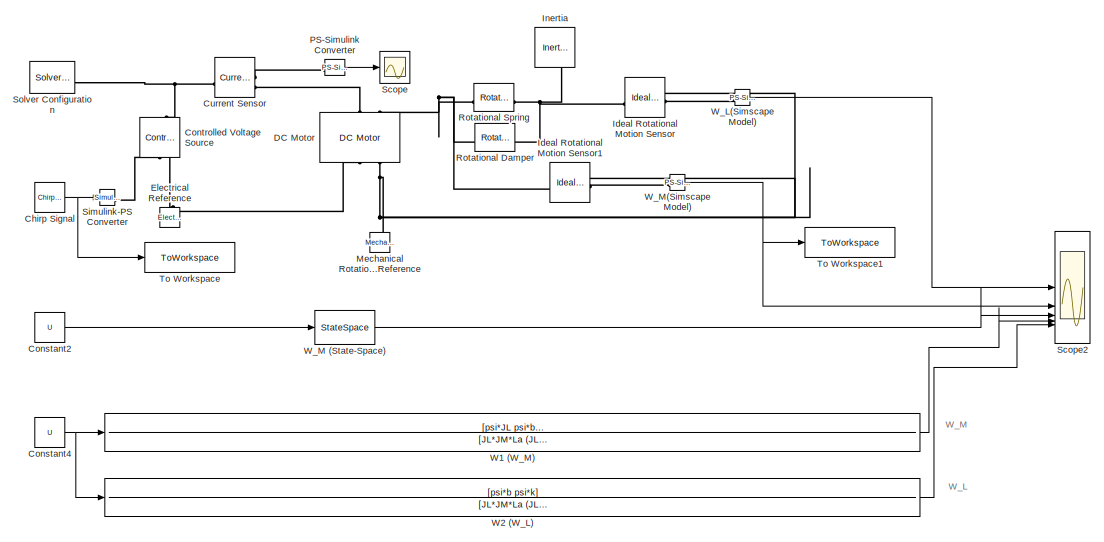
[diagram: root canvas - part 1/2, center side, full height]
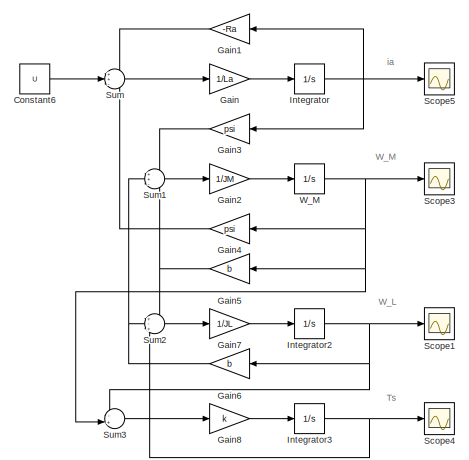
[diagram: root canvas - part 2/2, right side, full height]
MODEL slx_5d9f4610cdbe
KIND model
CONFIG AbsTol = auto
CONFIG EnableMultiTasking = off
CONFIG FixedStep = auto
CONFIG MaxStep = auto
CONFIG MinStep = auto
CONFIG RelTol = 1e-3
CONFIG SampleTimeConstraint = Unconstrained
CONFIG SolverName = VariableStepAuto
CONFIG StartTime = 0.0
CONFIG StopTime = 250
BLOCK [Reference] Chirp Signal  REF=simulink/Sources/Chirp Signal
  SourceBlock = simulink/Sources/Chirp Signal
  SourceType = chirp
BLOCK [Constant] Constant2
  Commented = on
  Value = U
BLOCK [Constant] Constant4
  Commented = on
  Value = U
BLOCK [Constant] Constant6
  Commented = on
  Value = U
BLOCK [Reference] Controlled Voltage Source  REF=fl_lib/Electrical/Electrical Sources/Controlled Voltage
Source
  NameLocation = right
  SourceBlock = fl_lib/Electrical/Electrical Sources/Controlled Voltage\nSource
  SourceType = Controlled Voltage\nSource
BLOCK [Reference] Current Sensor  REF=fl_lib/Electrical/Electrical Sensors/Current Sensor
  SourceBlock = fl_lib/Electrical/Electrical Sensors/Current Sensor
  SourceType = Current Sensor
BLOCK [Reference] DC Motor  REF=ee_lib/Electromechanical/Brushed Motors/DC Motor
  NameLocation = right
  SourceBlock = ee_lib/Electromechanical/Brushed Motors/DC Motor
  SourceType = DC Motor
BLOCK [Reference] Electrical Reference  REF=fl_lib/Electrical/Electrical Elements/Electrical Reference
  NameLocation = right
  SourceBlock = fl_lib/Electrical/Electrical Elements/Electrical Reference
  SourceType = Electrical Reference
BLOCK [Gain] Gain
  Commented = on
  Gain = 1/La
BLOCK [Gain] Gain1
  Commented = on
  Gain = -Ra
  NameLocation = top
BLOCK [Gain] Gain2
  Commented = on
  Gain = 1/JM
BLOCK [Gain] Gain3
  Commented = on
  Gain = psi
  NameLocation = top
BLOCK [Gain] Gain4
  Commented = on
  Gain = psi
  NameLocation = top
BLOCK [Gain] Gain5
  Commented = on
  Gain = b
  NameLocation = top
BLOCK [Gain] Gain6
  Commented = on
  Gain = b
  NameLocation = top
BLOCK [Gain] Gain7
  Commented = on
  Gain = 1/JL
BLOCK [Gain] Gain8
  Commented = on
  Gain = k
BLOCK [Reference] Ideal Rotational Motion Sensor  REF=fl_lib/Mechanical/Mechanical Sensors/Ideal Rotational
Motion Sensor
  SourceBlock = fl_lib/Mechanical/Mechanical Sensors/Ideal Rotational\nMotion Sensor
  SourceType = Ideal Rotational\nMotion Sensor
BLOCK [Reference] Ideal Rotational Motion Sensor1  REF=fl_lib/Mechanical/Mechanical Sensors/Ideal Rotational
Motion Sensor
  SourceBlock = fl_lib/Mechanical/Mechanical Sensors/Ideal Rotational\nMotion Sensor
  SourceType = Ideal Rotational\nMotion Sensor
BLOCK [Reference] Inertia  REF=fl_lib/Mechanical/Rotational Elements/Inertia
  NameLocation = left
  SourceBlock = fl_lib/Mechanical/Rotational Elements/Inertia
  SourceType = Inertia
BLOCK [Integrator] Integrator
  Commented = on
BLOCK [Integrator] Integrator2
  Commented = on
BLOCK [Integrator] Integrator3
  Commented = on
BLOCK [Reference] Mechanical Rotational Reference  REF=fl_lib/Mechanical/Rotational Elements/Mechanical
Rotational Reference
  NameLocation = right
  SourceBlock = fl_lib/Mechanical/Rotational Elements/Mechanical\nRotational Reference
  SourceType = Mechanical\nRotational Reference
BLOCK [Reference] PS-Simulink Converter  REF=nesl_utility/PS-Simulink
Converter
  SourceBlock = nesl_utility/PS-Simulink\nConverter
  SourceType = PS-Simulink\nConverter
BLOCK [Reference] Rotational Damper  REF=fl_lib/Mechanical/Rotational Elements/Rotational Damper
  SourceBlock = fl_lib/Mechanical/Rotational Elements/Rotational Damper
  SourceType = Rotational Damper
BLOCK [Reference] Rotational Spring  REF=fl_lib/Mechanical/Rotational Elements/Rotational Spring
  SourceBlock = fl_lib/Mechanical/Rotational Elements/Rotational Spring
  SourceType = Rotational Spring
BLOCK [Scope] Scope
  Floating = off
  NumInputPorts = 1
  ScopeSpecificationString = Simulink.scopes.TimeScopeBlockCfg('CurrentConfiguration', extmgr.ConfigurationSet(extmgr.Configuration('Core','General UI',true,'FigureColor',[1 1 1]),extmgr.Configuration('Core','Source UI',true),extmgr.Configuration('Sources','WiredSimulink',true,'DataLoggingVariableName','ScopeData1'),extmgr.Configuration('Visuals','Time Domain',true,'SerializedDisplays',{struct('MinYLimReal','-10','MaxYLimReal...<+2285ch>
BLOCK [Scope] Scope1
  Commented = on
  Floating = off
  NumInputPorts = 1
  ScopeSpecificationString = Simulink.scopes.TimeScopeBlockCfg('CurrentConfiguration', extmgr.ConfigurationSet(extmgr.Configuration('Core','General UI',true,'FigureColor',[1 1 1]),extmgr.Configuration('Core','Source UI',true),extmgr.Configuration('Sources','WiredSimulink',true,'DataLoggingVariableName','ScopeData1'),extmgr.Configuration('Visuals','Time Domain',true,'SerializedDisplays',{struct('MinYLimReal','-13.60371','MaxYL...<+2403ch>
BLOCK [Scope] Scope2
  Floating = off
  NumInputPorts = 5
  ScopeSpecificationString = Simulink.scopes.TimeScopeBlockCfg('CurrentConfiguration', extmgr.ConfigurationSet(extmgr.Configuration('Core','General UI',true,'FigureColor',[1 1 1]),extmgr.Configuration('Core','Source UI',true),extmgr.Configuration('Sources','WiredSimulink',true,'DataLoggingVariableName','ScopeData2'),extmgr.Configuration('Visuals','Time Domain',true,'SerializedDisplays',{struct('MinYLimReal','-13.08978','MaxYL...<+2465ch>
BLOCK [Scope] Scope3
  Commented = on
  Floating = off
  NumInputPorts = 1
  ScopeSpecificationString = Simulink.scopes.TimeScopeBlockCfg('CurrentConfiguration', extmgr.ConfigurationSet(extmgr.Configuration('Core','General UI',true,'FigureColor',[1 1 1]),extmgr.Configuration('Core','Source UI',true),extmgr.Configuration('Sources','WiredSimulink',true,'DataLoggingVariableName','ScopeData3'),extmgr.Configuration('Visuals','Time Domain',true,'SerializedDisplays',{struct('MinYLimReal','-13.1049','MaxYLi...<+2393ch>
BLOCK [Scope] Scope4
  Commented = on
  Floating = off
  NumInputPorts = 1
  ScopeSpecificationString = Simulink.scopes.TimeScopeBlockCfg('CurrentConfiguration', extmgr.ConfigurationSet(extmgr.Configuration('Core','General UI',true,'FigureColor',[1 1 1]),extmgr.Configuration('Core','Source UI',true),extmgr.Configuration('Sources','WiredSimulink',true,'DataLoggingVariableName','ScopeData2'),extmgr.Configuration('Visuals','Time Domain',true,'SerializedDisplays',{struct('MinYLimReal','-14.23948','MaxYL...<+2414ch>
BLOCK [Scope] Scope5
  Commented = on
  Floating = off
  NumInputPorts = 1
  ScopeSpecificationString = Simulink.scopes.TimeScopeBlockCfg('CurrentConfiguration', extmgr.ConfigurationSet(extmgr.Configuration('Core','General UI',true,'FigureColor',[1 1 1]),extmgr.Configuration('Core','Source UI',true),extmgr.Configuration('Sources','WiredSimulink',true),extmgr.Configuration('Visuals','Time Domain',true,'SerializedDisplays',{struct('MinYLimReal','-14.23948','MaxYLimReal','128.15528','YLabelReal','','Mi...<+2375ch>
BLOCK [Reference] Simulink-PS Converter  REF=nesl_utility/Simulink-PS
Converter
  SourceBlock = nesl_utility/Simulink-PS\nConverter
  SourceType = Simulink-PS\nConverter
BLOCK [Reference] Solver Configuration  REF=nesl_utility/Solver
Configuration
  SourceBlock = nesl_utility/Solver\nConfiguration
  SourceType = Solver\nConfiguration
BLOCK [Sum] Sum
  Commented = on
  Inputs = ++-
BLOCK [Sum] Sum1
  Commented = on
  Inputs = ++-
BLOCK [Sum] Sum2
  Commented = on
  Inputs = +-+
BLOCK [Sum] Sum3
  Commented = on
  Inputs = -+|
BLOCK [ToWorkspace] To Workspace
  FixptAsFi = on
  MaxDataPoints = inf
  SampleTime = .001
  VariableName = INPUT
BLOCK [ToWorkspace] To Workspace1
  FixptAsFi = on
  MaxDataPoints = inf
  SampleTime = .001
  VariableName = OUTPUT
BLOCK [TransferFcn] W1 (W_M)
  Commented = on
  Denominator = [JL*JM*La (JL*JM*Ra + JL*La*b + JM*La*b) (JL*psi^2 + JL*Ra*b + JM*Ra*b + JL*La*k + JM*La*k) (psi^2*b + JL*Ra*k + JM*Ra*k) psi^2*k]
  Numerator = [psi*JL psi*b psi*k]
BLOCK [TransferFcn] W2 (W_L)
  Commented = on
  Denominator = [JL*JM*La (JL*JM*Ra + JL*La*b + JM*La*b) (JL*psi^2 + JL*Ra*b + JM*Ra*b + JL*La*k + JM*La*k) (psi^2*b + JL*Ra*k + JM*Ra*k) psi^2*k]
  Numerator = [psi*b psi*k]
BLOCK [Reference] W_L(Simscape Model)  REF=nesl_utility/PS-Simulink
Converter
  SourceBlock = nesl_utility/PS-Simulink\nConverter
  SourceType = PS-Simulink\nConverter
BLOCK [Integrator] W_M
  Commented = on
BLOCK [StateSpace] W_M (State-Space)
  A = A
  B = B
  C = C
  Commented = on
  D = D
  InitialCondition = 0
BLOCK [Reference] W_M(Simscape Model)  REF=nesl_utility/PS-Simulink
Converter
  SourceBlock = nesl_utility/PS-Simulink\nConverter
  SourceType = PS-Simulink\nConverter
ANNOTATION (root): Ts
ANNOTATION (root): W_L
ANNOTATION (root): W_M
ANNOTATION (root): ia
NET Chirp Signal:1 -> Simulink-PS Converter:1, To Workspace:1
LINE Constant2:1 -> W_M (State-Space):1
NET Constant4:1 -> W1 (W_M):1, W2 (W_L):1
LINE Constant6:1 -> Sum:2
LINE Gain1:1 -> Sum:1
LINE Gain2:1 -> W_M:1
LINE Gain3:1 -> Sum1:1
LINE Gain4:1 -> Sum:3
NET Gain5:1 -> Sum1:3, Sum2:1
NET Gain6:1 -> Sum1:2, Sum2:2
LINE Gain7:1 -> Integrator2:1
LINE Gain8:1 -> Integrator3:1
LINE Gain:1 -> Integrator:1
NET Integrator2:1 -> Gain6:1, Scope1:1, Sum3:1
NET Integrator3:1 -> Scope4:1, Sum2:3
NET Integrator:1 -> Gain1:1, Gain3:1, Scope5:1
LINE PS-Simulink Converter:1 -> Scope:1
LINE Sum1:1 -> Gain2:1
LINE Sum2:1 -> Gain7:1
LINE Sum3:1 -> Gain8:1
LINE Sum:1 -> Gain:1
LINE W1 (W_M):1 -> Scope2:4
LINE W2 (W_L):1 -> Scope2:5
LINE W_L(Simscape Model):1 -> Scope2:1
LINE W_M (State-Space):1 -> Scope2:3
NET W_M(Simscape Model):1 -> Scope2:2, To Workspace1:1
NET W_M:1 -> Gain4:1, Gain5:1, Scope3:1, Sum3:2
PNET net1: Controlled Voltage Source:LConn1 -- Current Sensor:LConn1 -- Solver Configuration:RConn1
PLINE Controlled Voltage Source:RConn1 -- Simulink-PS Converter:RConn1
PNET net2: Controlled Voltage Source:RConn2 -- DC Motor:RConn1 -- Electrical Reference:LConn1
PLINE Current Sensor:RConn1 -- PS-Simulink Converter:LConn1
PLINE Current Sensor:RConn2 -- DC Motor:LConn1
PNET net3: DC Motor:LConn2 -- Ideal Rotational Motion Sensor1:LConn1 -- Rotational Damper:LConn1 -- Rotational Spring:LConn1
PNET net4: DC Motor:RConn2 -- Ideal Rotational Motion Sensor1:RConn1 -- Ideal Rotational Motion Sensor:RConn1 -- Mechanical Rotational Reference:LConn1
PLINE Ideal Rotational Motion Sensor1:RConn2 -- W_M(Simscape Model):LConn1
PNET net5: Ideal Rotational Motion Sensor:LConn1 -- Inertia:LConn1 -- Rotational Damper:RConn1 -- Rotational Spring:RConn1
PLINE Ideal Rotational Motion Sensor:RConn2 -- W_L(Simscape Model):LConn1
note: NET lines group one-source signal fan-out (src -> all destinations, sorted); 1:1 wires keep LINE; PNET lines group multi-terminal physical nets as a canonical sorted terminal list (undirected conserving connections); 2-terminal nets keep the pairwise PLINE form
